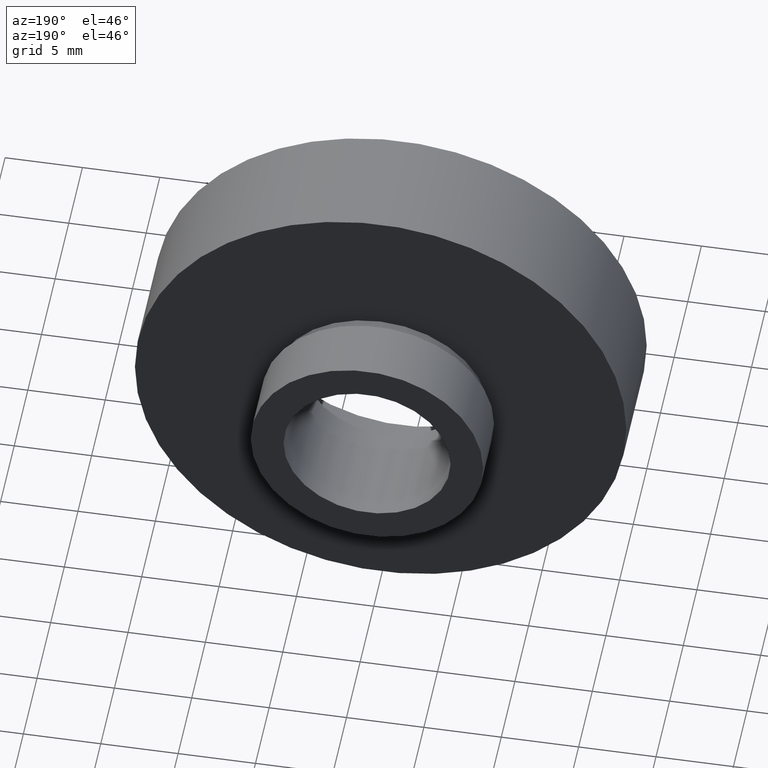
[diagram: clean part render]
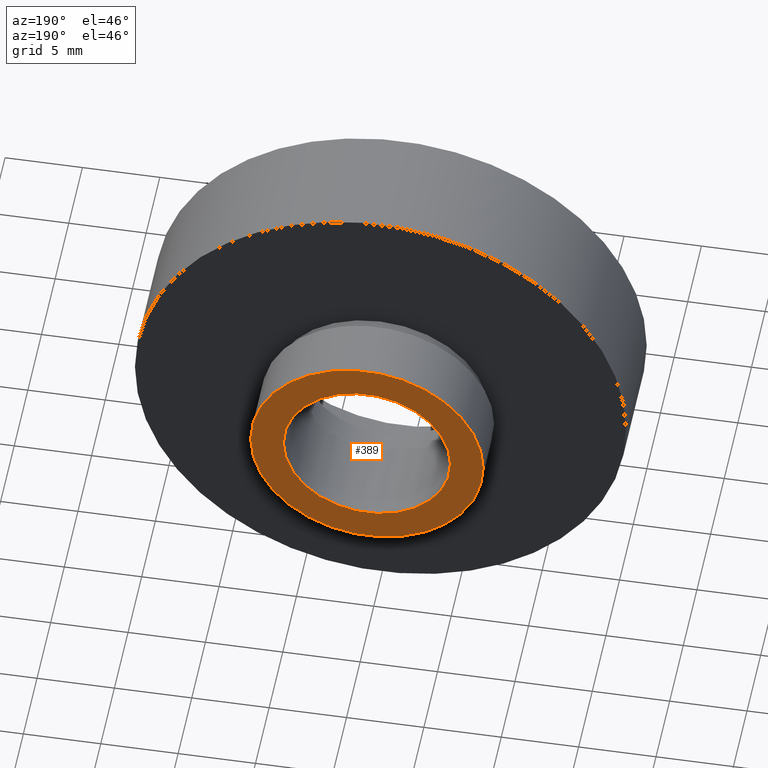
[diagram: same view with one face highlighted and labeled with its STEP entity id]
A machine part, auxiliary view. The second image highlights one B-rep face of the part: STEP entity #389.
In plain terms, the highlighted planar face has unit normal (0, -1, 0).
Its self-contained STEP definition (entity closure, byte-faithful):
#10 = DIRECTION ( 'NONE',  ( -1.224646799147351000E-016, 1.000000000000000000, -0.0000000000000000000 ) ) ;
#21 = DIRECTION ( 'NONE',  ( -1.224646799147351000E-016, 1.000000000000000000, -0.0000000000000000000 ) ) ;
#26 = FACE_OUTER_BOUND ( 'NONE', #540, .T. ) ;
#30 = DIRECTION ( 'NONE',  ( -1.224646799147351000E-016, 1.000000000000000000, -0.0000000000000000000 ) ) ;
#32 = EDGE_CURVE ( 'NONE', #615, #133, #156, .T. ) ;
#44 = CARTESIAN_POINT ( 'NONE',  ( 7.510000000000000700, 12.49999999999999800, 9.197097461596621700E-016 ) ) ;
#117 = CIRCLE ( 'NONE', #331, 5.400000000000000400 ) ;
#133 = VERTEX_POINT ( 'NONE', #44 ) ;
#156 = CIRCLE ( 'NONE', #165, 7.509999999999999800 ) ;
#157 = CARTESIAN_POINT ( 'NONE',  ( -7.509999999999998900, 12.49999999999999500, 0.0000000000000000000 ) ) ;
#162 = ORIENTED_EDGE ( 'NONE', *, *, #313, .T. ) ;
#165 = AXIS2_PLACEMENT_3D ( 'NONE', #332, #570, #431 ) ;
#173 = CARTESIAN_POINT ( 'NONE',  ( 5.371323195044475300E-016, 12.49999999999999600, 0.0000000000000000000 ) ) ;
#204 = CARTESIAN_POINT ( 'NONE',  ( 5.371323195044475300E-016, 12.49999999999999600, 0.0000000000000000000 ) ) ;
#205 = EDGE_CURVE ( 'NONE', #494, #222, #283, .T. ) ;
#206 = CARTESIAN_POINT ( 'NONE',  ( 5.400000000000001200, 12.49999999999999600, 6.613092715395707500E-016 ) ) ;
#217 = DIRECTION ( 'NONE',  ( 1.224646799147351000E-016, -1.000000000000000000, 0.0000000000000000000 ) ) ;
#222 = VERTEX_POINT ( 'NONE', #396 ) ;
#237 = ORIENTED_EDGE ( 'NONE', *, *, #460, .F. ) ;
#259 = DIRECTION ( 'NONE',  ( -1.000000000000000000, -2.309884788251407900E-016, 0.0000000000000000000 ) ) ;
#262 = DIRECTION ( 'NONE',  ( -1.000000000000000000, 0.0000000000000000000, 0.0000000000000000000 ) ) ;
#283 = CIRCLE ( 'NONE', #294, 5.400000000000000400 ) ;
#294 = AXIS2_PLACEMENT_3D ( 'NONE', #204, #10, #539 ) ;
#312 = CARTESIAN_POINT ( 'NONE',  ( 5.400000000000001200, 12.49999999999999600, 0.0000000000000000000 ) ) ;
#313 = EDGE_CURVE ( 'NONE', #133, #615, #618, .T. ) ;
#331 = AXIS2_PLACEMENT_3D ( 'NONE', #173, #30, #262 ) ;
#332 = CARTESIAN_POINT ( 'NONE',  ( 5.371323195044473300E-016, 12.49999999999999600, 0.0000000000000000000 ) ) ;
#358 = PLANE ( 'NONE',  #433 ) ;
#389 = ADVANCED_FACE ( 'NONE', ( #506, #26 ), #358, .F. ) ;
#396 = CARTESIAN_POINT ( 'NONE',  ( -5.399999999999999500, 12.49999999999999600, 0.0000000000000000000 ) ) ;
#416 = DIRECTION ( 'NONE',  ( 1.000000000000000000, 1.224646799147351000E-016, 0.0000000000000000000 ) ) ;
#428 = ORIENTED_EDGE ( 'NONE', *, *, #32, .T. ) ;
#431 = DIRECTION ( 'NONE',  ( -1.000000000000000000, -2.309884788251407900E-016, 0.0000000000000000000 ) ) ;
#433 = AXIS2_PLACEMENT_3D ( 'NONE', #312, #217, #416 ) ;
#435 = EDGE_LOOP ( 'NONE', ( #237, #573 ) ) ;
#460 = EDGE_CURVE ( 'NONE', #222, #494, #117, .T. ) ;
#494 = VERTEX_POINT ( 'NONE', #206 ) ;
#502 = CARTESIAN_POINT ( 'NONE',  ( 5.371323195044473300E-016, 12.49999999999999600, 0.0000000000000000000 ) ) ;
#506 = FACE_BOUND ( 'NONE', #435, .T. ) ;
#539 = DIRECTION ( 'NONE',  ( -1.000000000000000000, 0.0000000000000000000, 0.0000000000000000000 ) ) ;
#540 = EDGE_LOOP ( 'NONE', ( #428, #162 ) ) ;
#570 = DIRECTION ( 'NONE',  ( -1.224646799147351000E-016, 1.000000000000000000, -0.0000000000000000000 ) ) ;
#573 = ORIENTED_EDGE ( 'NONE', *, *, #205, .F. ) ;
#596 = AXIS2_PLACEMENT_3D ( 'NONE', #502, #21, #259 ) ;
#615 = VERTEX_POINT ( 'NONE', #157 ) ;
#618 = CIRCLE ( 'NONE', #596, 7.509999999999999800 ) ;